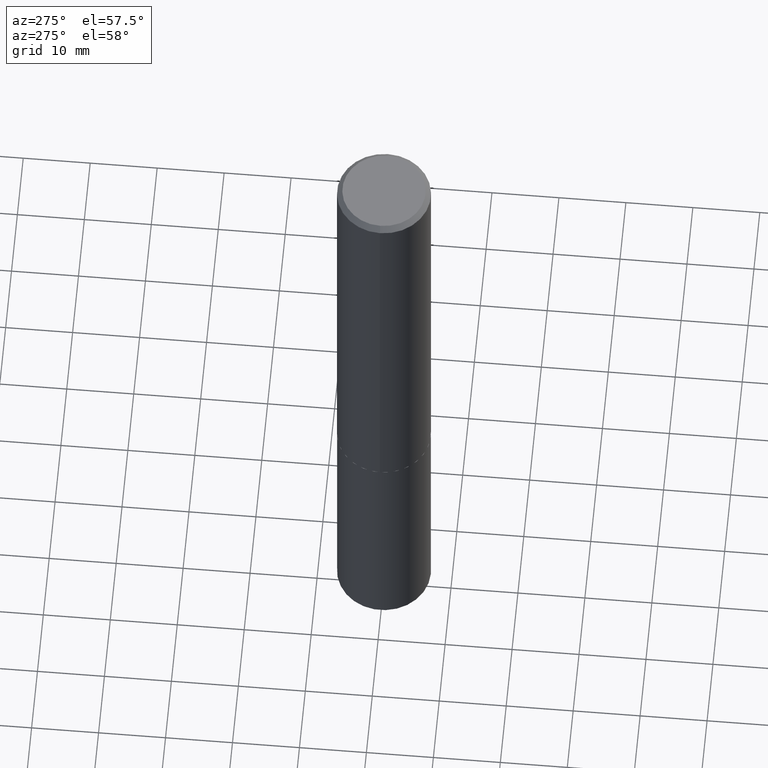
[diagram: clean part render]
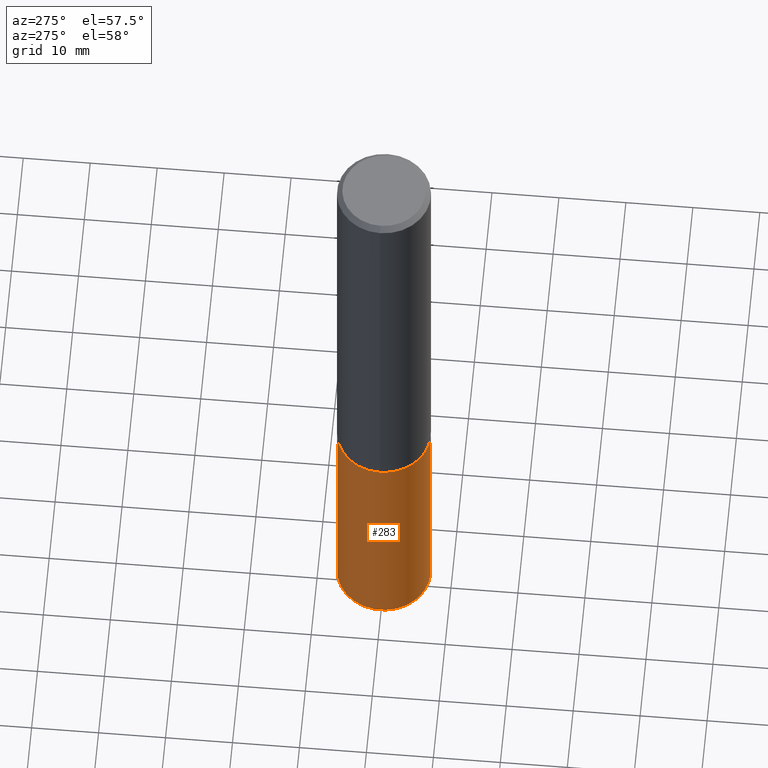
[diagram: same view with one face highlighted and labeled with its STEP entity id]
A machine part, auxiliary view. The second image highlights one B-rep face of the part: STEP entity #283.
In plain terms, the highlighted cylindrical surface (partial cylindrical patch) has radius 7.0002 mm, axis along (-0, 0, 1).
Its self-contained STEP definition (entity closure, byte-faithful):
#5 = ORIENTED_EDGE ( 'NONE', *, *, #29, .F. ) ;
#13 = VECTOR ( 'NONE', #119, 39.37007874015748143 ) ;
#23 = LINE ( 'NONE', #202, #13 ) ;
#29 = EDGE_CURVE ( 'NONE', #167, #138, #23, .T. ) ;
#38 = DIRECTION ( 'NONE',  ( -2.445558201220444659E-29, 3.491353320064535150E-15, 1.000000000000000000 ) ) ;
#50 = CARTESIAN_POINT ( 'NONE',  ( 6.450657616955154352E-29, -9.209829475600450259E-15, -2.637800000000000367 ) ) ;
#77 = DIRECTION ( 'NONE',  ( -6.982962677686265922E-15, -1.000000000000000000, 3.964946289788480896E-15 ) ) ;
#80 = CARTESIAN_POINT ( 'NONE',  ( -1.924504513970233585E-15, -0.2756000000000144445, -4.138753202565982114 ) ) ;
#102 = CIRCLE ( 'NONE', #372, 0.2756000000000000116 ) ;
#109 = EDGE_LOOP ( 'NONE', ( #5, #275, #204, #177 ) ) ;
#119 = DIRECTION ( 'NONE',  ( -2.445558201220444659E-29, 3.491353320064535150E-15, 1.000000000000000000 ) ) ;
#130 = EDGE_CURVE ( 'NONE', #261, #269, #180, .T. ) ;
#137 = DIRECTION ( 'NONE',  ( -2.445558201220444659E-29, 3.491353320064535150E-15, 1.000000000000000000 ) ) ;
#138 = VERTEX_POINT ( 'NONE', #272 ) ;
#148 = DIRECTION ( 'NONE',  ( -2.445558201220444659E-29, 3.491353320064535150E-15, 1.000000000000000000 ) ) ;
#152 = EDGE_CURVE ( 'NONE', #138, #269, #201, .T. ) ;
#166 = CARTESIAN_POINT ( 'NONE',  ( -1.924504513970270662E-15, -0.2756000000000092265, -2.637799999999999478 ) ) ;
#167 = VERTEX_POINT ( 'NONE', #310 ) ;
#169 = FACE_OUTER_BOUND ( 'NONE', #109, .T. ) ;
#177 = ORIENTED_EDGE ( 'NONE', *, *, #152, .F. ) ;
#180 = LINE ( 'NONE', #307, #288 ) ;
#201 = CIRCLE ( 'NONE', #208, 0.2756000000000000116 ) ;
#202 = CARTESIAN_POINT ( 'NONE',  ( 1.958255779754900487E-15, 0.2755999999999907968, -2.637800000000001699 ) ) ;
#204 = ORIENTED_EDGE ( 'NONE', *, *, #130, .T. ) ;
#208 = AXIS2_PLACEMENT_3D ( 'NONE', #50, #235, #355 ) ;
#210 = AXIS2_PLACEMENT_3D ( 'NONE', #371, #137, #255 ) ;
#235 = DIRECTION ( 'NONE',  ( -2.445558201220444659E-29, 3.491353320064535150E-15, 1.000000000000000000 ) ) ;
#255 = DIRECTION ( 'NONE',  ( -6.982962677686265922E-15, -1.000000000000000000, 3.964946289788480896E-15 ) ) ;
#261 = VERTEX_POINT ( 'NONE', #80 ) ;
#269 = VERTEX_POINT ( 'NONE', #166 ) ;
#272 = CARTESIAN_POINT ( 'NONE',  ( 1.958255779754937564E-15, 0.2755999999999907968, -2.637800000000001699 ) ) ;
#275 = ORIENTED_EDGE ( 'NONE', *, *, #277, .T. ) ;
#277 = EDGE_CURVE ( 'NONE', #167, #261, #102, .T. ) ;
#283 = ADVANCED_FACE ( 'NONE', ( #169 ), #291, .T. ) ;
#287 = CARTESIAN_POINT ( 'NONE',  ( 1.012132603113848376E-28, -1.445018742264069166E-14, -4.138753202565983003 ) ) ;
#288 = VECTOR ( 'NONE', #148, 39.37007874015748143 ) ;
#291 = CYLINDRICAL_SURFACE ( 'NONE', #210, 0.2756000000000000116 ) ;
#307 = CARTESIAN_POINT ( 'NONE',  ( -1.924504513970270662E-15, -0.2756000000000092265, -2.637799999999999478 ) ) ;
#310 = CARTESIAN_POINT ( 'NONE',  ( 1.958255779754936775E-15, 0.2755999999999855232, -4.138753202565984779 ) ) ;
#355 = DIRECTION ( 'NONE',  ( -6.982962677686265922E-15, -1.000000000000000000, 3.964946289788480896E-15 ) ) ;
#371 = CARTESIAN_POINT ( 'NONE',  ( 6.450657616955154352E-29, -9.209829475600450259E-15, -2.637800000000000367 ) ) ;
#372 = AXIS2_PLACEMENT_3D ( 'NONE', #287, #38, #77 ) ;